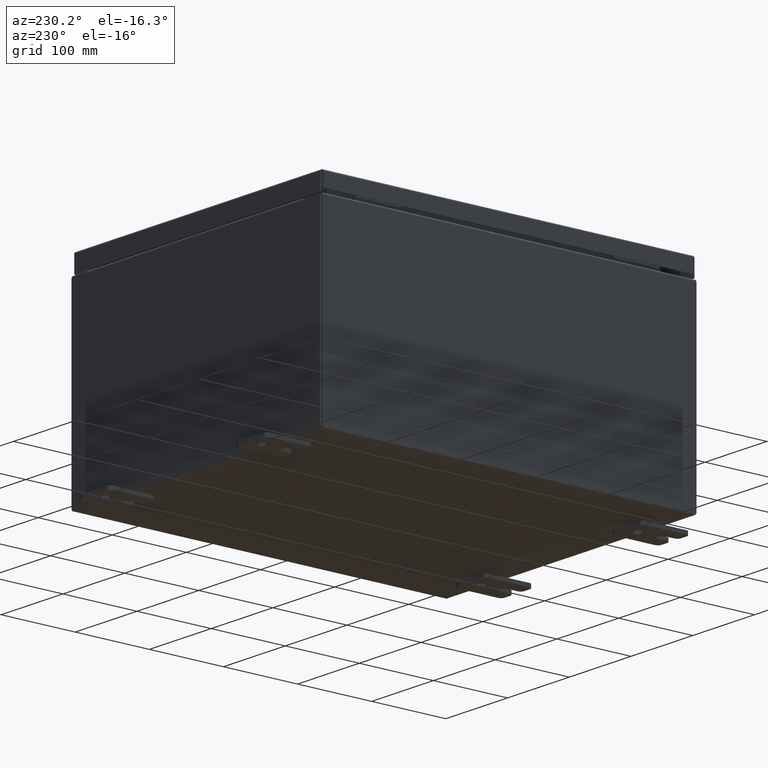
[diagram: clean part render]
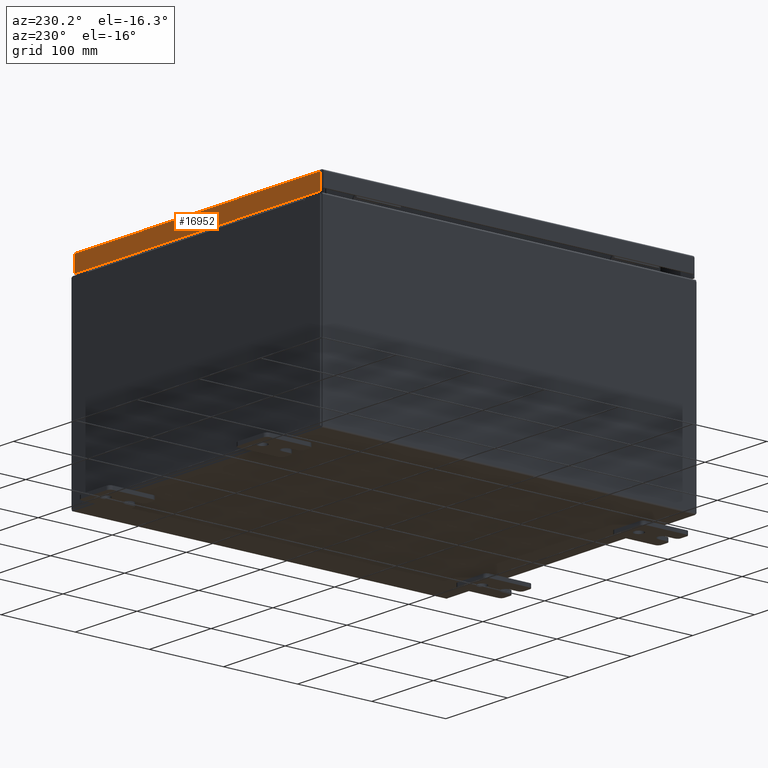
[diagram: same view with one face highlighted and labeled with its STEP entity id]
A machine part, auxiliary view. The second image highlights one B-rep face of the part: STEP entity #16952.
In plain terms, the highlighted planar face has unit normal (0, -1, -0).
Its self-contained STEP definition (entity closure, byte-faithful):
#1131 = DIRECTION ( 'NONE',  ( 3.268434467782203000E-031, -1.000000000000000000, -2.532419924601860200E-015 ) ) ;
#1727 = VECTOR ( 'NONE', #46566, 39.37007874015748100 ) ;
#4466 = ORIENTED_EDGE ( 'NONE', *, *, #45060, .F. ) ;
#6711 = DIRECTION ( 'NONE',  ( -0.0000000000000000000, 2.532419924601860200E-015, -1.000000000000000000 ) ) ;
#9092 = VERTEX_POINT ( 'NONE', #51321 ) ;
#9184 = LINE ( 'NONE', #9413, #35073 ) ;
#9413 = CARTESIAN_POINT ( 'NONE',  ( -7.937500000000000000, 9.937500000000000000, -0.9377000000000018700 ) ) ;
#9512 = ORIENTED_EDGE ( 'NONE', *, *, #48172, .F. ) ;
#11094 = VERTEX_POINT ( 'NONE', #22682 ) ;
#12336 = LINE ( 'NONE', #40770, #39774 ) ;
#12476 = CARTESIAN_POINT ( 'NONE',  ( -7.937500000000000000, 9.937499999999998200, -0.08770000000000008300 ) ) ;
#14673 = LINE ( 'NONE', #12476, #1727 ) ;
#15373 = CARTESIAN_POINT ( 'NONE',  ( -3.248006752358563700E-030, 9.937499999999998200, 2.542673665674256200E-014 ) ) ;
#15671 = EDGE_LOOP ( 'NONE', ( #39177, #52638, #4466, #9512 ) ) ;
#16952 = ADVANCED_FACE ( 'NONE', ( #57500 ), #30267, .F. ) ;
#17062 = CARTESIAN_POINT ( 'NONE',  ( 7.848657864376269400, 9.937500000000000000, -0.9376999999999996400 ) ) ;
#18883 = VECTOR ( 'NONE', #21217, 39.37007874015748100 ) ;
#21217 = DIRECTION ( 'NONE',  ( 0.0000000000000000000, 2.532419924601860200E-015, -1.000000000000000000 ) ) ;
#22682 = CARTESIAN_POINT ( 'NONE',  ( -7.848657864376269400, 9.937500000000000000, -0.9377000000000018700 ) ) ;
#22748 = EDGE_CURVE ( 'NONE', #9092, #35741, #57775, .T. ) ;
#23868 = DIRECTION ( 'NONE',  ( 1.000000000000000000, 4.379057701015054300E-047, 1.290636847400439300E-016 ) ) ;
#30267 = PLANE ( 'NONE',  #40169 ) ;
#35073 = VECTOR ( 'NONE', #23868, 39.37007874015748100 ) ;
#35168 = DIRECTION ( 'NONE',  ( 0.0000000000000000000, 2.532419924601860200E-015, -1.000000000000000000 ) ) ;
#35741 = VERTEX_POINT ( 'NONE', #17062 ) ;
#39177 = ORIENTED_EDGE ( 'NONE', *, *, #42260, .F. ) ;
#39774 = VECTOR ( 'NONE', #6711, 39.37007874015748100 ) ;
#40169 = AXIS2_PLACEMENT_3D ( 'NONE', #15373, #1131, #35168 ) ;
#40618 = VERTEX_POINT ( 'NONE', #45934 ) ;
#40770 = CARTESIAN_POINT ( 'NONE',  ( -7.848657864376269400, 9.937499999999998200, -0.07469999999999980800 ) ) ;
#42260 = EDGE_CURVE ( 'NONE', #9092, #40618, #14673, .T. ) ;
#45060 = EDGE_CURVE ( 'NONE', #11094, #35741, #9184, .T. ) ;
#45934 = CARTESIAN_POINT ( 'NONE',  ( -7.848657864376269400, 9.937499999999998200, -0.08770000000000008300 ) ) ;
#46566 = DIRECTION ( 'NONE',  ( -1.000000000000000000, -3.268434467782203500E-031, -8.183254531802216200E-046 ) ) ;
#48172 = EDGE_CURVE ( 'NONE', #40618, #11094, #12336, .T. ) ;
#51321 = CARTESIAN_POINT ( 'NONE',  ( 7.848657864376269400, 9.937499999999998200, -0.08770000000000008300 ) ) ;
#52638 = ORIENTED_EDGE ( 'NONE', *, *, #22748, .T. ) ;
#55311 = CARTESIAN_POINT ( 'NONE',  ( 7.848657864376269400, 9.937499999999998200, 2.542673665674256200E-014 ) ) ;
#57500 = FACE_OUTER_BOUND ( 'NONE', #15671, .T. ) ;
#57775 = LINE ( 'NONE', #55311, #18883 ) ;